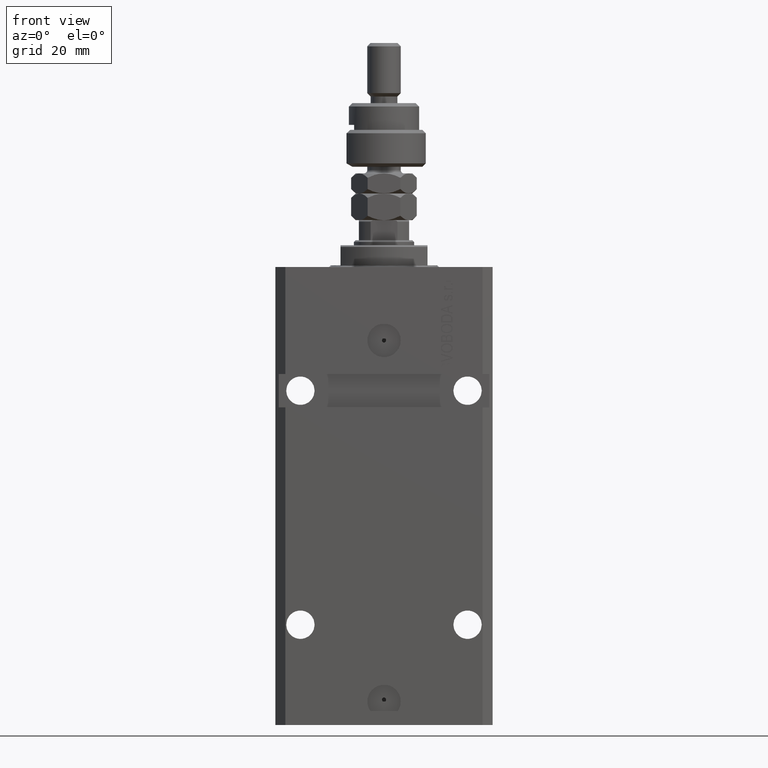
[diagram: clean part render]
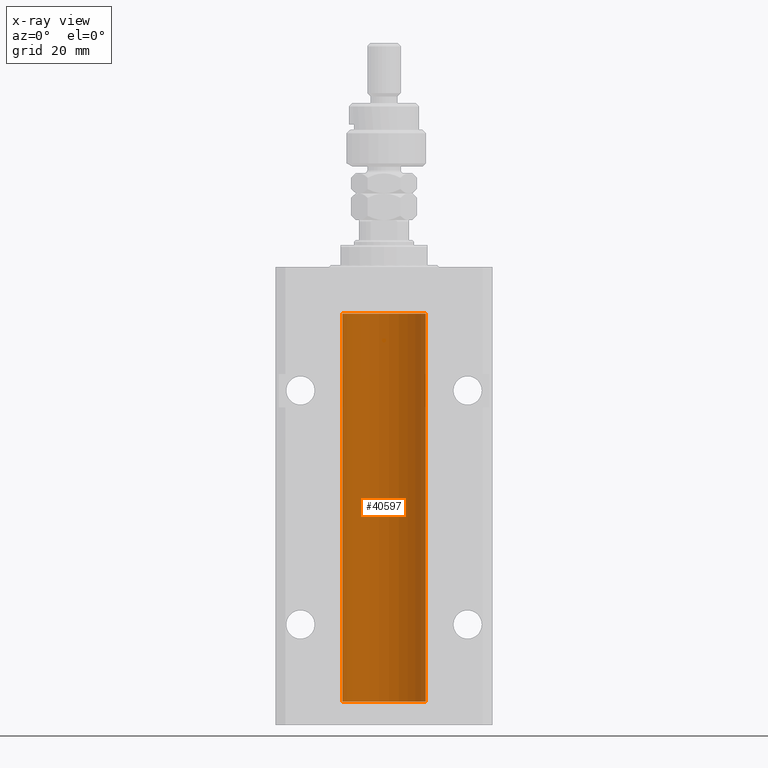
[diagram: x-ray — body ghosted, one internal face saturated and labeled with its STEP entity id]
A machine part, front view, then the same camera in x-ray: the body is ghosted and one INTERNAL B-rep face — a face not visible from any outside direction — is saturated and labeled: STEP entity #40597.
In plain terms, the highlighted cylindrical surface (partial cylindrical patch) has radius 12.5 mm, axis along (0, 0, 1).
Its self-contained STEP definition (entity closure, byte-faithful):
#552 = CARTESIAN_POINT ( 'NONE',  ( 12.50000000000000000, 5.055633433180616021E-15, -125.6250000000000142 ) ) ;
#568 = VERTEX_POINT ( 'NONE', #44437 ) ;
#693 = VECTOR ( 'NONE', #42141, 1000.000000000000000 ) ;
#795 = EDGE_CURVE ( 'NONE', #20894, #44402, #20295, .T. ) ;
#1892 = CARTESIAN_POINT ( 'NONE',  ( 12.49421963472024366, 0.3844519291903583103, -22.49947303647044805 ) ) ;
#1985 = EDGE_CURVE ( 'NONE', #26317, #13264, #20166, .T. ) ;
#2133 = CARTESIAN_POINT ( 'NONE',  ( 12.49915742890631876, 0.1636982395582437522, -22.60872397847025539 ) ) ;
#2262 = EDGE_CURVE ( 'NONE', #5938, #46958, #41898, .T. ) ;
#2369 = CARTESIAN_POINT ( 'NONE',  ( 12.49625698805480667, 0.3151108292486967666, -22.54593695688170385 ) ) ;
#3183 = CIRCLE ( 'NONE', #3946, 12.50000000000000000 ) ;
#3376 = VERTEX_POINT ( 'NONE', #28394 ) ;
#3946 = AXIS2_PLACEMENT_3D ( 'NONE', #44054, #43567, #33060 ) ;
#3966 = CARTESIAN_POINT ( 'NONE',  ( -12.50000000000000000, 1.530808498934191521E-15, -130.0999999999999943 ) ) ;
#4022 = ORIENTED_EDGE ( 'NONE', *, *, #44585, .T. ) ;
#4374 = ORIENTED_EDGE ( 'NONE', *, *, #33975, .T. ) ;
#4689 = EDGE_CURVE ( 'NONE', #28039, #20894, #39620, .T. ) ;
#5445 = DIRECTION ( 'NONE',  ( -0.000000000000000000, -0.000000000000000000, 1.000000000000000000 ) ) ;
#5677 = CARTESIAN_POINT ( 'NONE',  ( -12.48520330846397819, 0.6088355886774127201, -22.16325431852561323 ) ) ;
#5938 = VERTEX_POINT ( 'NONE', #38909 ) ;
#6119 = CARTESIAN_POINT ( 'NONE',  ( -12.49011732893843707, 0.5003763274120269777, -125.3834811128928806 ) ) ;
#6552 = VERTEX_POINT ( 'NONE', #13078 ) ;
#6680 = EDGE_CURVE ( 'NONE', #44402, #6552, #26453, .T. ) ;
#7120 = DIRECTION ( 'NONE',  ( -0.000000000000000000, -0.000000000000000000, 1.000000000000000000 ) ) ;
#8481 = CARTESIAN_POINT ( 'NONE',  ( 0.000000000000000000, 0.000000000000000000, -130.0999999999999943 ) ) ;
#8517 = ORIENTED_EDGE ( 'NONE', *, *, #41041, .F. ) ;
#9066 = CARTESIAN_POINT ( 'NONE',  ( -12.48436813453758631, 0.6249418250771061611, -124.8366899679892441 ) ) ;
#9593 = LINE ( 'NONE', #43542, #21360 ) ;
#10478 = CARTESIAN_POINT ( 'NONE',  ( -12.50000000000000000, 1.530808498934191521E-15, -130.0999999999999943 ) ) ;
#10591 = ORIENTED_EDGE ( 'NONE', *, *, #12091, .F. ) ;
#11616 = AXIS2_PLACEMENT_3D ( 'NONE', #19190, #45566, #42126 ) ;
#12009 = DIRECTION ( 'NONE',  ( -0.000000000000000000, -0.000000000000000000, 1.000000000000000000 ) ) ;
#12091 = EDGE_CURVE ( 'NONE', #5938, #3376, #45483, .T. ) ;
#12371 = AXIS2_PLACEMENT_3D ( 'NONE', #8481, #42179, #15818 ) ;
#12803 = CARTESIAN_POINT ( 'NONE',  ( 12.49999999999999467, 0.1631389616600898151, -124.3750000000002274 ) ) ;
#13078 = CARTESIAN_POINT ( 'NONE',  ( 12.50000000000017941, 3.868073565084946818E-13, -21.37499999999641176 ) ) ;
#13117 = CARTESIAN_POINT ( 'NONE',  ( 12.48809900631782099, 0.5573988467445639694, -22.32640147935474317 ) ) ;
#13264 = VERTEX_POINT ( 'NONE', #43159 ) ;
#13557 = CARTESIAN_POINT ( 'NONE',  ( 12.48810305280568222, 0.5461368461738448365, -21.68525466142676805 ) ) ;
#13696 = CARTESIAN_POINT ( 'NONE',  ( 12.50000000000000000, -1.470318446642941360E-15, -22.62500000000000000 ) ) ;
#15100 = CARTESIAN_POINT ( 'NONE',  ( -12.50000000000017941, 3.883381646606358354E-13, -22.62500000000358824 ) ) ;
#15411 = CARTESIAN_POINT ( 'NONE',  ( 12.50000000000000000, 5.055633433180616021E-15, -125.6250000000000142 ) ) ;
#15818 = DIRECTION ( 'NONE',  ( 1.000000000000000000, 0.000000000000000000, 0.000000000000000000 ) ) ;
#15994 = CARTESIAN_POINT ( 'NONE',  ( 12.48520578595315023, 0.6087855079133756009, -124.8365671750934780 ) ) ;
#16152 = CARTESIAN_POINT ( 'NONE',  ( -12.49999999999999467, 0.1631761135151251485, -125.6249999999999005 ) ) ;
#16256 = CARTESIAN_POINT ( 'NONE',  ( -12.50000000000000000, 1.530808498934191521E-15, -130.0999999999999943 ) ) ;
#16437 = CARTESIAN_POINT ( 'NONE',  ( -12.48809959379011403, 0.5462151254764975317, -22.31461370481611795 ) ) ;
#16852 = CARTESIAN_POINT ( 'NONE',  ( 12.50000000000000000, 0.000000000000000000, -13.99999999999999822 ) ) ;
#17189 = CARTESIAN_POINT ( 'NONE',  ( 12.49631206032075781, 0.3252904079142953098, -124.4413970021492872 ) ) ;
#17880 = ORIENTED_EDGE ( 'NONE', *, *, #44076, .T. ) ;
#18666 = ORIENTED_EDGE ( 'NONE', *, *, #40267, .F. ) ;
#19190 = CARTESIAN_POINT ( 'NONE',  ( 0.000000000000000000, 0.000000000000000000, -130.0999999999999943 ) ) ;
#19618 = CARTESIAN_POINT ( 'NONE',  ( -12.48436813453758454, 0.6249418250771192618, -21.83668996798922635 ) ) ;
#19654 = CARTESIAN_POINT ( 'NONE',  ( 12.48436522214846711, 0.6250000000078859141, -124.9999999999992326 ) ) ;
#19888 = ORIENTED_EDGE ( 'NONE', *, *, #20580, .T. ) ;
#20166 = LINE ( 'NONE', #16256, #693 ) ;
#20191 = EDGE_CURVE ( 'NONE', #34979, #13264, #21098, .T. ) ;
#20295 = B_SPLINE_CURVE_WITH_KNOTS ( 'NONE', 3,
 ( #39265, #28263, #2133, #2369, #1892, #13117, #46598, #42937 ),
 .UNSPECIFIED., .F., .F.,
 ( 4, 2, 2, 4 ),
 ( 2.576359803311334014E-18, 0.0002443481056285645150, 0.0004886962112571264279, 0.0009773924225142506875 ),
 .UNSPECIFIED. ) ;
#20580 = EDGE_CURVE ( 'NONE', #28293, #28039, #31040, .T. ) ;
#20590 = CARTESIAN_POINT ( 'NONE',  ( -12.48436376893640443, 0.6250290278979917513, -22.08132082824473486 ) ) ;
#20622 = CARTESIAN_POINT ( 'NONE',  ( 12.49012055744648642, 0.5002956126656095126, -124.6164171020240445 ) ) ;
#20781 = CARTESIAN_POINT ( 'NONE',  ( -12.49631005746706691, 0.3253680783018559897, -125.5585674046538998 ) ) ;
#20894 = VERTEX_POINT ( 'NONE', #13696 ) ;
#21098 = B_SPLINE_CURVE_WITH_KNOTS ( 'NONE', 3,
 ( #24450, #35678, #43255, #31296, #34714, #32021, #9066, #42284, #23731, #39588, #6119, #20781, #16152, #28343 ),
 .UNSPECIFIED., .F., .F.,
 ( 4, 2, 2, 2, 2, 2, 4 ),
 ( 3.496117753580553008E-18, 0.0002442924852390892100, 0.0004885849704781749505, 0.0009771699409563759219, 0.001221462426195476462, 0.001465754911434576785, 0.001954339881912777865 ),
 .UNSPECIFIED. ) ;
#21360 = VECTOR ( 'NONE', #5445, 1000.000000000000000 ) ;
#22505 = CARTESIAN_POINT ( 'NONE',  ( 12.49915742890631876, 0.1636982395582410321, -125.6087239784702518 ) ) ;
#23731 = CARTESIAN_POINT ( 'NONE',  ( -12.48520330846398174, 0.6088355886774048376, -125.1632543185256310 ) ) ;
#23937 = DIRECTION ( 'NONE',  ( -0.000000000000000000, -0.000000000000000000, 1.000000000000000000 ) ) ;
#24019 = CARTESIAN_POINT ( 'NONE',  ( -12.50000000000000000, 0.08260426088729219685, -21.37500000000000000 ) ) ;
#24075 = EDGE_CURVE ( 'NONE', #568, #32912, #9593, .T. ) ;
#24109 = CIRCLE ( 'NONE', #12371, 12.50000000000000000 ) ;
#24450 = CARTESIAN_POINT ( 'NONE',  ( -12.50000000000000000, -1.890568805888175348E-14, -124.3750000000000000 ) ) ;
#25623 = DIRECTION ( 'NONE',  ( -0.000000000000000000, -0.000000000000000000, 1.000000000000000000 ) ) ;
#26317 = VERTEX_POINT ( 'NONE', #30583 ) ;
#26453 = B_SPLINE_CURVE_WITH_KNOTS ( 'NONE', 3,
 ( #28216, #35793, #47033, #13557, #28456, #39698, #29432, #44569 ),
 .UNSPECIFIED., .F., .F.,
 ( 4, 2, 2, 4 ),
 ( 0.0009773924225142506875, 0.001221629287363794770, 0.001465866152213338852, 0.001954339881912434389 ),
 .UNSPECIFIED. ) ;
#26998 = CARTESIAN_POINT ( 'NONE',  ( -12.50000000000000000, -1.890568805888175348E-14, -124.3750000000000000 ) ) ;
#27181 = CARTESIAN_POINT ( 'NONE',  ( -12.49999999999999289, 0.1631761135151241215, -22.62499999999984013 ) ) ;
#27207 = ORIENTED_EDGE ( 'NONE', *, *, #795, .T. ) ;
#27906 = CARTESIAN_POINT ( 'NONE',  ( -12.49625855304193678, 0.3150454781038042329, -21.45402800297484802 ) ) ;
#28039 = VERTEX_POINT ( 'NONE', #33015 ) ;
#28060 = ORIENTED_EDGE ( 'NONE', *, *, #1985, .F. ) ;
#28143 = CARTESIAN_POINT ( 'NONE',  ( -12.48810268015257563, 0.5573155909661349217, -21.67347410093867666 ) ) ;
#28216 = CARTESIAN_POINT ( 'NONE',  ( 12.48436522214846889, 0.6250000000078781426, -21.99999999999923261 ) ) ;
#28263 = CARTESIAN_POINT ( 'NONE',  ( 12.49999999999999822, 0.08262306818362555316, -22.62499999999997513 ) ) ;
#28293 = VERTEX_POINT ( 'NONE', #42745 ) ;
#28321 = VERTEX_POINT ( 'NONE', #16852 ) ;
#28343 = CARTESIAN_POINT ( 'NONE',  ( -12.50000000000017941, 3.883381307462307207E-13, -125.6250000000035953 ) ) ;
#28380 = ORIENTED_EDGE ( 'NONE', *, *, #4689, .T. ) ;
#28394 = CARTESIAN_POINT ( 'NONE',  ( -12.50000000000000000, 1.530808498934191521E-15, -13.99999999999999822 ) ) ;
#28456 = CARTESIAN_POINT ( 'NONE',  ( 12.49012055744648997, 0.5002956126655976332, -21.61641710202404454 ) ) ;
#29085 = CARTESIAN_POINT ( 'NONE',  ( 12.48436522214846889, 0.6250000000078781426, -21.99999999999923261 ) ) ;
#29432 = CARTESIAN_POINT ( 'NONE',  ( 12.49999999999999112, 0.1631389616600879555, -21.37500000000019185 ) ) ;
#30583 = CARTESIAN_POINT ( 'NONE',  ( -12.50000000000000000, 1.530808498934191521E-15, -130.0999999999999943 ) ) ;
#30848 = CARTESIAN_POINT ( 'NONE',  ( -12.50000000000017941, 3.883381646606358354E-13, -22.62500000000358824 ) ) ;
#31040 = B_SPLINE_CURVE_WITH_KNOTS ( 'NONE', 3,
 ( #19654, #41410, #15994, #37744, #20622, #17189, #12803, #43330 ),
 .UNSPECIFIED., .F., .F.,
 ( 4, 2, 2, 4 ),
 ( 0.0009773924225142717210, 0.001221629287363824694, 0.001465866152213377450, 0.001954339881912483395 ),
 .UNSPECIFIED. ) ;
#31296 = CARTESIAN_POINT ( 'NONE',  ( -12.49625855304193855, 0.3150454781037954621, -124.4540280029748658 ) ) ;
#32021 = CARTESIAN_POINT ( 'NONE',  ( -12.48810268015257563, 0.5573155909661203777, -124.6734741009386909 ) ) ;
#32912 = VERTEX_POINT ( 'NONE', #552 ) ;
#33015 = CARTESIAN_POINT ( 'NONE',  ( 12.50000000000017941, 3.868073647803008074E-13, -124.3749999999964047 ) ) ;
#33060 = DIRECTION ( 'NONE',  ( 1.000000000000000000, 0.000000000000000000, 0.000000000000000000 ) ) ;
#33248 = CARTESIAN_POINT ( 'NONE',  ( 12.48809900631782099, 0.5573988467445673001, -125.3264014793547290 ) ) ;
#33725 = CARTESIAN_POINT ( 'NONE',  ( 12.49421963472024544, 0.3844519291903631952, -125.4994730364704907 ) ) ;
#33975 = EDGE_CURVE ( 'NONE', #32912, #28293, #45298, .T. ) ;
#34382 = VECTOR ( 'NONE', #23937, 1000.000000000000000 ) ;
#34435 = CARTESIAN_POINT ( 'NONE',  ( 12.50000000000000000, 0.000000000000000000, -130.0999999999999943 ) ) ;
#34510 = CARTESIAN_POINT ( 'NONE',  ( -12.49011732893843529, 0.5003763274120274218, -22.38348111289287701 ) ) ;
#34714 = CARTESIAN_POINT ( 'NONE',  ( -12.49422197749723829, 0.3843754434364221040, -124.5004709956809705 ) ) ;
#34917 = LINE ( 'NONE', #34435, #34382 ) ;
#34979 = VERTEX_POINT ( 'NONE', #26998 ) ;
#34991 = CARTESIAN_POINT ( 'NONE',  ( -12.49915784441386890, 0.1636601911727947889, -21.39126818989430490 ) ) ;
#35678 = CARTESIAN_POINT ( 'NONE',  ( -12.50000000000000178, 0.08260426088727608473, -124.3749999999999858 ) ) ;
#35793 = CARTESIAN_POINT ( 'NONE',  ( 12.48436522214888100, 0.6249999999996762590, -21.91847339462350774 ) ) ;
#36950 = VECTOR ( 'NONE', #12009, 1000.000000000000000 ) ;
#37744 = CARTESIAN_POINT ( 'NONE',  ( 12.48810305280568222, 0.5461368461738498326, -124.6852546614267538 ) ) ;
#38184 = CARTESIAN_POINT ( 'NONE',  ( -12.50000000000000000, -2.089494013101375120E-17, -21.37499999999999645 ) ) ;
#38663 = CARTESIAN_POINT ( 'NONE',  ( -12.49422197749724006, 0.3843754434364375916, -21.50047099568095277 ) ) ;
#38909 = CARTESIAN_POINT ( 'NONE',  ( -12.50000000000000000, -2.089494013101375120E-17, -21.37499999999999645 ) ) ;
#39265 = CARTESIAN_POINT ( 'NONE',  ( 12.50000000000000000, -1.470318446642941360E-15, -22.62500000000000000 ) ) ;
#39365 = EDGE_LOOP ( 'NONE', ( #28060, #18666, #42815, #4374, #19888, #28380, #27207, #47269, #4022, #17880, #10591, #47346, #8517, #41807 ) ) ;
#39588 = CARTESIAN_POINT ( 'NONE',  ( -12.48809959379011758, 0.5462151254764870956, -125.3146137048161677 ) ) ;
#39620 = LINE ( 'NONE', #40586, #41345 ) ;
#39698 = CARTESIAN_POINT ( 'NONE',  ( 12.49631206032075958, 0.3252904079142808214, -21.44139700214925526 ) ) ;
#40267 = EDGE_CURVE ( 'NONE', #568, #26317, #24109, .T. ) ;
#40586 = CARTESIAN_POINT ( 'NONE',  ( 12.50000000000000000, 0.000000000000000000, -130.0999999999999943 ) ) ;
#40597 = ADVANCED_FACE ( 'NONE', ( #41421 ), #45803, .F. ) ;
#41041 = EDGE_CURVE ( 'NONE', #34979, #46958, #44670, .T. ) ;
#41298 = CARTESIAN_POINT ( 'NONE',  ( 12.48436522214846711, 0.6250000000078859141, -124.9999999999992326 ) ) ;
#41345 = VECTOR ( 'NONE', #7120, 1000.000000000000000 ) ;
#41410 = CARTESIAN_POINT ( 'NONE',  ( 12.48436522214887745, 0.6249999999996828093, -124.9184733946234758 ) ) ;
#41421 = FACE_OUTER_BOUND ( 'NONE', #39365, .T. ) ;
#41807 = ORIENTED_EDGE ( 'NONE', *, *, #20191, .T. ) ;
#41898 = B_SPLINE_CURVE_WITH_KNOTS ( 'NONE', 3,
 ( #38184, #24019, #34991, #27906, #38663, #28143, #19618, #20590, #5677, #16437, #34510, #46720, #27181, #30848 ),
 .UNSPECIFIED., .F., .F.,
 ( 4, 2, 2, 2, 2, 2, 4 ),
 ( 2.030551168097110502E-20, 0.0002442924852390969078, 0.0004885849704781938157, 0.0009771699409563880650, 0.001221462426195485135, 0.001465754911434582423, 0.001954339881912776130 ),
 .UNSPECIFIED. ) ;
#42126 = DIRECTION ( 'NONE',  ( 1.000000000000000000, 0.000000000000000000, 0.000000000000000000 ) ) ;
#42141 = DIRECTION ( 'NONE',  ( -0.000000000000000000, -0.000000000000000000, 1.000000000000000000 ) ) ;
#42179 = DIRECTION ( 'NONE',  ( 0.000000000000000000, 0.000000000000000000, 1.000000000000000000 ) ) ;
#42284 = CARTESIAN_POINT ( 'NONE',  ( -12.48436376893640265, 0.6250290278979852010, -125.0813208282447135 ) ) ;
#42745 = CARTESIAN_POINT ( 'NONE',  ( 12.48436522214846711, 0.6250000000078859141, -124.9999999999992326 ) ) ;
#42815 = ORIENTED_EDGE ( 'NONE', *, *, #24075, .T. ) ;
#42937 = CARTESIAN_POINT ( 'NONE',  ( 12.48436522214846889, 0.6250000000078781426, -21.99999999999923261 ) ) ;
#43159 = CARTESIAN_POINT ( 'NONE',  ( -12.50000000000017941, 3.883381307462307207E-13, -125.6250000000035953 ) ) ;
#43255 = CARTESIAN_POINT ( 'NONE',  ( -12.49915784441387068, 0.1636601911727856851, -124.3912681898942765 ) ) ;
#43330 = CARTESIAN_POINT ( 'NONE',  ( 12.50000000000017941, 3.868073647803008074E-13, -124.3749999999964047 ) ) ;
#43542 = CARTESIAN_POINT ( 'NONE',  ( 12.50000000000000000, 0.000000000000000000, -130.0999999999999943 ) ) ;
#43567 = DIRECTION ( 'NONE',  ( 0.000000000000000000, 0.000000000000000000, 1.000000000000000000 ) ) ;
#44054 = CARTESIAN_POINT ( 'NONE',  ( 0.000000000000000000, 0.000000000000000000, -13.99999999999999822 ) ) ;
#44076 = EDGE_CURVE ( 'NONE', #28321, #3376, #3183, .T. ) ;
#44402 = VERTEX_POINT ( 'NONE', #29085 ) ;
#44437 = CARTESIAN_POINT ( 'NONE',  ( 12.50000000000000000, 0.000000000000000000, -130.0999999999999943 ) ) ;
#44486 = CARTESIAN_POINT ( 'NONE',  ( 12.48436522214885613, 0.6250000000001550982, -125.1631274754030585 ) ) ;
#44569 = CARTESIAN_POINT ( 'NONE',  ( 12.50000000000017941, 3.868073565084946818E-13, -21.37499999999641176 ) ) ;
#44585 = EDGE_CURVE ( 'NONE', #6552, #28321, #34917, .T. ) ;
#44670 = LINE ( 'NONE', #10478, #45201 ) ;
#44967 = CARTESIAN_POINT ( 'NONE',  ( 12.50000000000000000, 0.08262306818362785688, -125.6249999999999858 ) ) ;
#45201 = VECTOR ( 'NONE', #25623, 1000.000000000000000 ) ;
#45298 = B_SPLINE_CURVE_WITH_KNOTS ( 'NONE', 3,
 ( #15411, #44967, #22505, #48143, #33725, #33248, #44486, #41298 ),
 .UNSPECIFIED., .F., .F.,
 ( 4, 2, 2, 4 ),
 ( 4.913018323501965315E-18, 0.0002443481056285863075, 0.0004886962112571676276, 0.0009773924225142717210 ),
 .UNSPECIFIED. ) ;
#45483 = LINE ( 'NONE', #3966, #36950 ) ;
#45566 = DIRECTION ( 'NONE',  ( -0.000000000000000000, -0.000000000000000000, 1.000000000000000000 ) ) ;
#45803 = CYLINDRICAL_SURFACE ( 'NONE', #11616, 12.50000000000000000 ) ;
#46598 = CARTESIAN_POINT ( 'NONE',  ( 12.48436522214885969, 0.6250000000001448841, -22.16312747540307271 ) ) ;
#46720 = CARTESIAN_POINT ( 'NONE',  ( -12.49631005746706336, 0.3253680783018528255, -22.55856740465392463 ) ) ;
#46958 = VERTEX_POINT ( 'NONE', #15100 ) ;
#47033 = CARTESIAN_POINT ( 'NONE',  ( 12.48520578595314845, 0.6087855079133684955, -21.83656717509346024 ) ) ;
#47269 = ORIENTED_EDGE ( 'NONE', *, *, #6680, .T. ) ;
#47346 = ORIENTED_EDGE ( 'NONE', *, *, #2262, .T. ) ;
#48143 = CARTESIAN_POINT ( 'NONE',  ( 12.49625698805480845, 0.3151108292486959339, -125.5459369568817038 ) ) ;